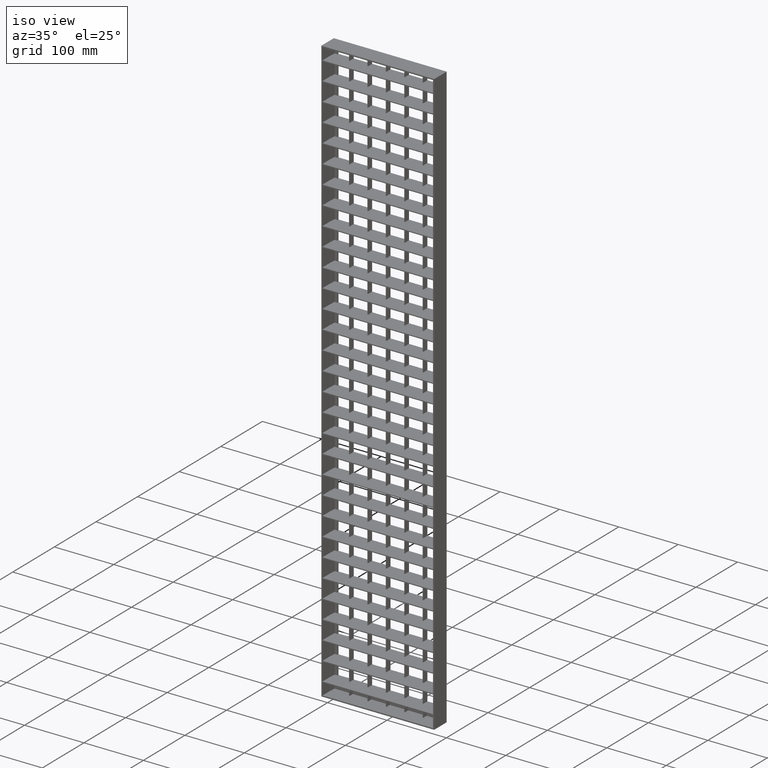
[diagram: clean part render]
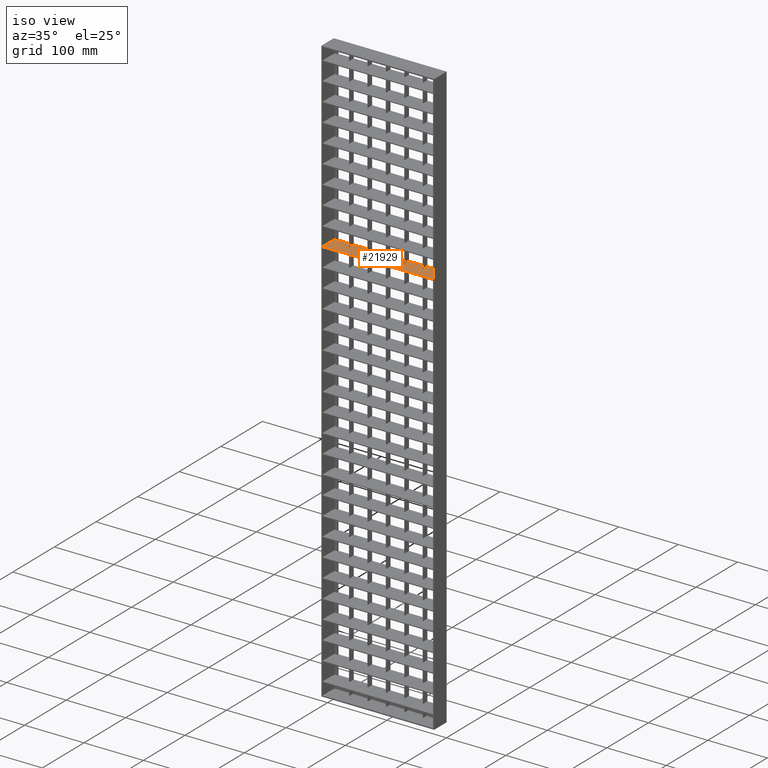
[diagram: same view with one face highlighted and labeled with its STEP entity id]
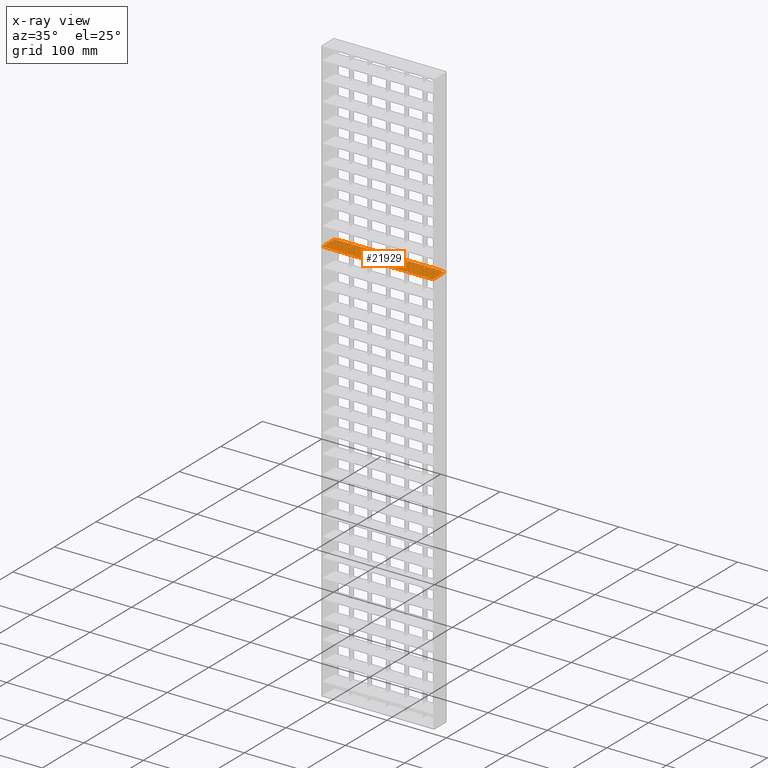
[diagram: x-ray of the same camera — body ghosted, the highlighted face saturated]
A machine part, iso view. The second image highlights one B-rep face of the part: STEP entity #21929.
The next image is the same camera in x-ray: the body ghosted, the highlighted face saturated — about 0% of this face is hidden behind the body in this view.
In plain terms, the highlighted planar face has unit normal (0, 0, 1).
Its self-contained STEP definition (entity closure, byte-faithful):
#222 = VERTEX_POINT ( 'NONE', #22766 ) ;
#343 = CARTESIAN_POINT ( 'NONE',  ( 182.0000000000000300, 13.00000000000000400, -305.2500000000000000 ) ) ;
#533 = CARTESIAN_POINT ( 'NONE',  ( 7.999999999999996400, 13.00000000000000400, -305.2500000000000000 ) ) ;
#712 = VECTOR ( 'NONE', #26463, 1000.000000000000000 ) ;
#835 = EDGE_CURVE ( 'NONE', #22558, #17253, #1848, .T. ) ;
#977 = DIRECTION ( 'NONE',  ( 0.0000000000000000000, -1.000000000000000000, 0.0000000000000000000 ) ) ;
#994 = VERTEX_POINT ( 'NONE', #343 ) ;
#1067 = ORIENTED_EDGE ( 'NONE', *, *, #2505, .T. ) ;
#1075 = AXIS2_PLACEMENT_3D ( 'NONE', #15352, #15467, #18135 ) ;
#1342 = LINE ( 'NONE', #6078, #26720 ) ;
#1373 = VERTEX_POINT ( 'NONE', #33401 ) ;
#1669 = CARTESIAN_POINT ( 'NONE',  ( 95.49999999999997200, 5.000000000000004400, -305.2500000000000000 ) ) ;
#1687 = VERTEX_POINT ( 'NONE', #533 ) ;
#1722 = LINE ( 'NONE', #17088, #21771 ) ;
#1848 = LINE ( 'NONE', #19509, #18624 ) ;
#1990 = DIRECTION ( 'NONE',  ( 0.0000000000000000000, -1.000000000000000000, 0.0000000000000000000 ) ) ;
#2008 = EDGE_CURVE ( 'NONE', #20102, #2392, #4578, .T. ) ;
#2012 = DIRECTION ( 'NONE',  ( 1.000000000000000000, 0.0000000000000000000, -0.0000000000000000000 ) ) ;
#2061 = VERTEX_POINT ( 'NONE', #4123 ) ;
#2066 = EDGE_CURVE ( 'NONE', #2061, #6449, #1722, .T. ) ;
#2151 = EDGE_CURVE ( 'NONE', #32925, #27427, #16447, .T. ) ;
#2297 = DIRECTION ( 'NONE',  ( -1.000000000000000000, -3.061616997868382600E-016, 0.0000000000000000000 ) ) ;
#2322 = CARTESIAN_POINT ( 'NONE',  ( 218.0374765917512100, 5.000000000000000900, -305.2500000000000000 ) ) ;
#2340 = LINE ( 'NONE', #12620, #8046 ) ;
#2346 = PLANE ( 'NONE',  #1075 ) ;
#2353 = LINE ( 'NONE', #31826, #712 ) ;
#2386 = VERTEX_POINT ( 'NONE', #10267 ) ;
#2392 = VERTEX_POINT ( 'NONE', #5244 ) ;
#2505 = EDGE_CURVE ( 'NONE', #24417, #2386, #33207, .T. ) ;
#2710 = VECTOR ( 'NONE', #7588, 1000.000000000000000 ) ;
#3505 = CARTESIAN_POINT ( 'NONE',  ( 218.0374765917511900, 15.00000000000005900, -305.2500000000000000 ) ) ;
#3516 = CARTESIAN_POINT ( 'NONE',  ( 7.999999999999994700, 15.00000000000000400, -305.2500000000000000 ) ) ;
#3893 = EDGE_CURVE ( 'NONE', #8502, #30115, #26185, .T. ) ;
#4123 = CARTESIAN_POINT ( 'NONE',  ( 125.5000000000000600, 15.00000000000003000, -305.2500000000000000 ) ) ;
#4355 = LINE ( 'NONE', #28188, #31405 ) ;
#4428 = DIRECTION ( 'NONE',  ( -1.000000000000000000, 0.0000000000000000000, 0.0000000000000000000 ) ) ;
#4578 = LINE ( 'NONE', #21781, #31624 ) ;
#4915 = VERTEX_POINT ( 'NONE', #26345 ) ;
#5244 = CARTESIAN_POINT ( 'NONE',  ( 187.5000000000000600, 13.00000000000000400, -305.2500000000000000 ) ) ;
#5540 = LINE ( 'NONE', #10970, #21525 ) ;
#5659 = CARTESIAN_POINT ( 'NONE',  ( 32.49999999999997200, 5.000000000000000900, -305.2500000000000000 ) ) ;
#6078 = CARTESIAN_POINT ( 'NONE',  ( 218.0374765917511900, 15.00000000000005900, -305.2500000000000000 ) ) ;
#6146 = LINE ( 'NONE', #9803, #22959 ) ;
#6195 = CARTESIAN_POINT ( 'NONE',  ( 188.0000000000000300, 5.000000000000004400, -305.2499999999998900 ) ) ;
#6201 = EDGE_CURVE ( 'NONE', #1373, #8253, #20195, .T. ) ;
#6205 = CARTESIAN_POINT ( 'NONE',  ( 218.0374765917511900, 15.00000000000005900, -305.2500000000000000 ) ) ;
#6225 = ORIENTED_EDGE ( 'NONE', *, *, #26392, .F. ) ;
#6449 = VERTEX_POINT ( 'NONE', #23157 ) ;
#6507 = LINE ( 'NONE', #19951, #32336 ) ;
#7025 = CARTESIAN_POINT ( 'NONE',  ( 95.49999999999997200, -14.99999999999994000, -305.2500000000000000 ) ) ;
#7162 = CARTESIAN_POINT ( 'NONE',  ( 125.5000000000000600, 5.000000000000002700, -305.2500000000002300 ) ) ;
#7181 = EDGE_CURVE ( 'NONE', #2386, #222, #22158, .T. ) ;
#7588 = DIRECTION ( 'NONE',  ( -1.000000000000000000, 0.0000000000000000000, 0.0000000000000000000 ) ) ;
#7665 = DIRECTION ( 'NONE',  ( -1.000000000000000000, 0.0000000000000000000, 0.0000000000000000000 ) ) ;
#7964 = ORIENTED_EDGE ( 'NONE', *, *, #14711, .T. ) ;
#8046 = VECTOR ( 'NONE', #977, 1000.000000000000000 ) ;
#8115 = CARTESIAN_POINT ( 'NONE',  ( 32.49999999999997200, 15.00000000000000200, -305.2500000000002300 ) ) ;
#8181 = VECTOR ( 'NONE', #4428, 1000.000000000000000 ) ;
#8232 = ORIENTED_EDGE ( 'NONE', *, *, #2008, .T. ) ;
#8246 = VECTOR ( 'NONE', #27511, 1000.000000000000000 ) ;
#8253 = VERTEX_POINT ( 'NONE', #24207 ) ;
#8257 = LINE ( 'NONE', #10635, #11925 ) ;
#8502 = VERTEX_POINT ( 'NONE', #25965 ) ;
#8549 = CARTESIAN_POINT ( 'NONE',  ( 2.000000000000004900, -15.00000000000000000, -305.2500000000000000 ) ) ;
#8608 = EDGE_CURVE ( 'NONE', #994, #4915, #13840, .T. ) ;
#9044 = CARTESIAN_POINT ( 'NONE',  ( 2.499999999999974200, -14.99999999999994000, -305.2500000000000000 ) ) ;
#9064 = CARTESIAN_POINT ( 'NONE',  ( 63.49999999999997200, 5.000000000000000900, -305.2500000000000000 ) ) ;
#9329 = LINE ( 'NONE', #12804, #14623 ) ;
#9426 = ORIENTED_EDGE ( 'NONE', *, *, #31780, .T. ) ;
#9803 = CARTESIAN_POINT ( 'NONE',  ( 218.0374765917511900, 15.00000000000005900, -305.2500000000000000 ) ) ;
#9890 = ORIENTED_EDGE ( 'NONE', *, *, #14443, .F. ) ;
#10057 = CARTESIAN_POINT ( 'NONE',  ( 32.49999999999997200, -14.99999999999994000, -305.2500000000000000 ) ) ;
#10267 = CARTESIAN_POINT ( 'NONE',  ( 157.5000000000000300, 5.000000000000002700, -305.2500000000002300 ) ) ;
#10531 = CARTESIAN_POINT ( 'NONE',  ( 2.499999999999974200, 13.00000000000000400, -305.2500000000000000 ) ) ;
#10635 = CARTESIAN_POINT ( 'NONE',  ( 7.999999999999996400, 13.00000000000000400, -305.2500000000000000 ) ) ;
#10681 = EDGE_CURVE ( 'NONE', #26962, #2061, #16543, .T. ) ;
#10935 = VECTOR ( 'NONE', #25501, 1000.000000000000000 ) ;
#10970 = CARTESIAN_POINT ( 'NONE',  ( 126.5000000000000600, -14.99999999999994000, -305.2500000000000000 ) ) ;
#11416 = EDGE_CURVE ( 'NONE', #30756, #32925, #20187, .T. ) ;
#11493 = DIRECTION ( 'NONE',  ( 8.673617379884037400E-016, 1.000000000000000000, -0.0000000000000000000 ) ) ;
#11586 = VERTEX_POINT ( 'NONE', #15545 ) ;
#11815 = VERTEX_POINT ( 'NONE', #23943 ) ;
#11925 = VECTOR ( 'NONE', #21207, 1000.000000000000000 ) ;
#12008 = CARTESIAN_POINT ( 'NONE',  ( 94.49999999999997200, 15.00000000000000200, -305.2500000000002300 ) ) ;
#12045 = LINE ( 'NONE', #3505, #13281 ) ;
#12219 = DIRECTION ( 'NONE',  ( 1.000000000000000000, 0.0000000000000000000, -0.0000000000000000000 ) ) ;
#12557 = CARTESIAN_POINT ( 'NONE',  ( 218.0374765917512100, 5.000000000000000900, -305.2500000000000000 ) ) ;
#12620 = CARTESIAN_POINT ( 'NONE',  ( 94.49999999999997200, -14.99999999999994000, -305.2500000000000000 ) ) ;
#12656 = CARTESIAN_POINT ( 'NONE',  ( 94.49999999999997200, 5.000000000000000900, -305.2500000000000000 ) ) ;
#12804 = CARTESIAN_POINT ( 'NONE',  ( 218.0374765917512100, 5.000000000000000900, -305.2500000000000000 ) ) ;
#12816 = LINE ( 'NONE', #27866, #19420 ) ;
#12959 = VERTEX_POINT ( 'NONE', #8115 ) ;
#13193 = LINE ( 'NONE', #15451, #26340 ) ;
#13281 = VECTOR ( 'NONE', #32360, 1000.000000000000000 ) ;
#13471 = ORIENTED_EDGE ( 'NONE', *, *, #32208, .T. ) ;
#13776 = EDGE_CURVE ( 'NONE', #33152, #6449, #16285, .T. ) ;
#13791 = CARTESIAN_POINT ( 'NONE',  ( 187.5000000000000600, 5.000000000000002700, -305.2500000000002300 ) ) ;
#13811 = DIRECTION ( 'NONE',  ( -0.0000000000000000000, -1.000000000000000000, 0.0000000000000000000 ) ) ;
#13840 = LINE ( 'NONE', #24608, #30281 ) ;
#14400 = LINE ( 'NONE', #24548, #33680 ) ;
#14443 = EDGE_CURVE ( 'NONE', #25018, #11586, #4355, .T. ) ;
#14587 = VECTOR ( 'NONE', #28412, 1000.000000000000000 ) ;
#14614 = EDGE_CURVE ( 'NONE', #12959, #22712, #21586, .T. ) ;
#14623 = VECTOR ( 'NONE', #20322, 1000.000000000000000 ) ;
#14711 = EDGE_CURVE ( 'NONE', #222, #1373, #2353, .T. ) ;
#14739 = DIRECTION ( 'NONE',  ( -0.0000000000000000000, 1.000000000000000000, 0.0000000000000000000 ) ) ;
#14782 = CARTESIAN_POINT ( 'NONE',  ( 2.000000000000004900, 13.00000000000000400, -305.2500000000000000 ) ) ;
#14880 = FACE_OUTER_BOUND ( 'NONE', #15189, .T. ) ;
#15189 = EDGE_LOOP ( 'NONE', ( #9890, #13471, #8232, #31973, #21712, #19328, #1067, #31858, #7964, #28572, #19778, #9426, #21459, #26544, #23237, #6225, #20263, #30893, #26143, #28669, #23326, #27609, #23608, #22001, #23666, #19891, #15523, #23004, #19389, #17025, #20059, #16613 ) ) ;
#15352 = CARTESIAN_POINT ( 'NONE',  ( 218.0374765917512100, -14.99999999999994000, -305.2500000000000000 ) ) ;
#15451 = CARTESIAN_POINT ( 'NONE',  ( 94.99999999999994300, 13.00000000000000400, -305.2500000000000000 ) ) ;
#15467 = DIRECTION ( 'NONE',  ( 0.0000000000000000000, 0.0000000000000000000, 1.000000000000000000 ) ) ;
#15523 = ORIENTED_EDGE ( 'NONE', *, *, #23222, .T. ) ;
#15545 = CARTESIAN_POINT ( 'NONE',  ( 188.0000000000000300, -15.00000000000000700, -305.2500000000000000 ) ) ;
#15614 = CARTESIAN_POINT ( 'NONE',  ( 218.0374765917512100, 5.000000000000000900, -305.2500000000000000 ) ) ;
#15759 = VECTOR ( 'NONE', #13811, 1000.000000000000000 ) ;
#16285 = LINE ( 'NONE', #7025, #10935 ) ;
#16447 = LINE ( 'NONE', #9044, #22605 ) ;
#16543 = LINE ( 'NONE', #26220, #16981 ) ;
#16613 = ORIENTED_EDGE ( 'NONE', *, *, #31019, .F. ) ;
#16657 = CARTESIAN_POINT ( 'NONE',  ( 126.5000000000000600, 5.000000000000002700, -305.2500000000002300 ) ) ;
#16749 = EDGE_CURVE ( 'NONE', #30756, #11815, #19058, .T. ) ;
#16918 = EDGE_CURVE ( 'NONE', #12959, #31424, #19093, .T. ) ;
#16974 = DIRECTION ( 'NONE',  ( -1.000000000000000000, -3.061616997868382600E-016, 0.0000000000000000000 ) ) ;
#16981 = VECTOR ( 'NONE', #23709, 1000.000000000000000 ) ;
#17025 = ORIENTED_EDGE ( 'NONE', *, *, #11416, .F. ) ;
#17042 = DIRECTION ( 'NONE',  ( 0.0000000000000000000, -1.000000000000000000, 0.0000000000000000000 ) ) ;
#17088 = CARTESIAN_POINT ( 'NONE',  ( 218.0374765917511900, 15.00000000000005900, -305.2500000000000000 ) ) ;
#17253 = VERTEX_POINT ( 'NONE', #18291 ) ;
#17646 = DIRECTION ( 'NONE',  ( 1.000000000000000000, 0.0000000000000000000, -0.0000000000000000000 ) ) ;
#17791 = EDGE_CURVE ( 'NONE', #22712, #32622, #12816, .T. ) ;
#18134 = VECTOR ( 'NONE', #17646, 1000.000000000000000 ) ;
#18135 = DIRECTION ( 'NONE',  ( 1.000000000000000000, 0.0000000000000000000, -0.0000000000000000000 ) ) ;
#18291 = CARTESIAN_POINT ( 'NONE',  ( 64.49999999999997200, 15.00000000000001200, -305.2500000000000000 ) ) ;
#18566 = VERTEX_POINT ( 'NONE', #32244 ) ;
#18624 = VECTOR ( 'NONE', #27284, 1000.000000000000000 ) ;
#19003 = CARTESIAN_POINT ( 'NONE',  ( 33.49999999999997200, -14.99999999999994000, -305.2500000000000000 ) ) ;
#19032 = DIRECTION ( 'NONE',  ( 0.0000000000000000000, -1.000000000000000000, 0.0000000000000000000 ) ) ;
#19058 = LINE ( 'NONE', #8549, #15759 ) ;
#19063 = LINE ( 'NONE', #19003, #23985 ) ;
#19093 = LINE ( 'NONE', #32620, #25228 ) ;
#19328 = ORIENTED_EDGE ( 'NONE', *, *, #21249, .T. ) ;
#19389 = ORIENTED_EDGE ( 'NONE', *, *, #2151, .F. ) ;
#19420 = VECTOR ( 'NONE', #2012, 1000.000000000000000 ) ;
#19469 = DIRECTION ( 'NONE',  ( -1.000000000000000000, -3.061616997868382600E-016, 0.0000000000000000000 ) ) ;
#19509 = CARTESIAN_POINT ( 'NONE',  ( 64.49999999999997200, -14.99999999999994000, -305.2500000000000000 ) ) ;
#19641 = EDGE_CURVE ( 'NONE', #8502, #18566, #6146, .T. ) ;
#19778 = ORIENTED_EDGE ( 'NONE', *, *, #33911, .T. ) ;
#19787 = VERTEX_POINT ( 'NONE', #12656 ) ;
#19891 = ORIENTED_EDGE ( 'NONE', *, *, #16918, .T. ) ;
#19951 = CARTESIAN_POINT ( 'NONE',  ( 218.0374765917512100, -14.99999999999994000, -305.2500000000000000 ) ) ;
#20052 = VECTOR ( 'NONE', #19032, 1000.000000000000000 ) ;
#20059 = ORIENTED_EDGE ( 'NONE', *, *, #16749, .T. ) ;
#20102 = VERTEX_POINT ( 'NONE', #13791 ) ;
#20187 = LINE ( 'NONE', #12557, #18134 ) ;
#20195 = LINE ( 'NONE', #6205, #8246 ) ;
#20226 = DIRECTION ( 'NONE',  ( -1.000000000000000000, 0.0000000000000000000, 0.0000000000000000000 ) ) ;
#20263 = ORIENTED_EDGE ( 'NONE', *, *, #33452, .F. ) ;
#20322 = DIRECTION ( 'NONE',  ( -1.000000000000000000, 0.0000000000000000000, 0.0000000000000000000 ) ) ;
#21207 = DIRECTION ( 'NONE',  ( 8.673617379884036500E-016, -1.000000000000000000, 0.0000000000000000000 ) ) ;
#21249 = EDGE_CURVE ( 'NONE', #4915, #24417, #12045, .T. ) ;
#21459 = ORIENTED_EDGE ( 'NONE', *, *, #10681, .T. ) ;
#21525 = VECTOR ( 'NONE', #29554, 1000.000000000000000 ) ;
#21586 = LINE ( 'NONE', #10057, #14587 ) ;
#21712 = ORIENTED_EDGE ( 'NONE', *, *, #8608, .T. ) ;
#21771 = VECTOR ( 'NONE', #16974, 1000.000000000000000 ) ;
#21781 = CARTESIAN_POINT ( 'NONE',  ( 187.5000000000000600, -14.99999999999994000, -305.2500000000000000 ) ) ;
#21810 = VERTEX_POINT ( 'NONE', #16657 ) ;
#21929 = ADVANCED_FACE ( 'NONE', ( #14880 ), #2346, .T. ) ;
#22001 = ORIENTED_EDGE ( 'NONE', *, *, #17791, .F. ) ;
#22158 = LINE ( 'NONE', #27912, #8181 ) ;
#22558 = VERTEX_POINT ( 'NONE', #23260 ) ;
#22605 = VECTOR ( 'NONE', #14739, 1000.000000000000000 ) ;
#22712 = VERTEX_POINT ( 'NONE', #5659 ) ;
#22766 = CARTESIAN_POINT ( 'NONE',  ( 156.5000000000000300, 5.000000000000002700, -305.2500000000002300 ) ) ;
#22959 = VECTOR ( 'NONE', #33534, 1000.000000000000000 ) ;
#23004 = ORIENTED_EDGE ( 'NONE', *, *, #24600, .T. ) ;
#23157 = CARTESIAN_POINT ( 'NONE',  ( 95.49999999999997200, 15.00000000000002000, -305.2500000000000000 ) ) ;
#23222 = EDGE_CURVE ( 'NONE', #31424, #1687, #8257, .T. ) ;
#23237 = ORIENTED_EDGE ( 'NONE', *, *, #13776, .F. ) ;
#23260 = CARTESIAN_POINT ( 'NONE',  ( 64.49999999999997200, 5.000000000000004400, -305.2500000000000000 ) ) ;
#23326 = ORIENTED_EDGE ( 'NONE', *, *, #3893, .F. ) ;
#23376 = EDGE_CURVE ( 'NONE', #30115, #22558, #14400, .T. ) ;
#23481 = EDGE_CURVE ( 'NONE', #30089, #17253, #1342, .T. ) ;
#23608 = ORIENTED_EDGE ( 'NONE', *, *, #28227, .F. ) ;
#23666 = ORIENTED_EDGE ( 'NONE', *, *, #14614, .F. ) ;
#23709 = DIRECTION ( 'NONE',  ( -0.0000000000000000000, 1.000000000000000000, 0.0000000000000000000 ) ) ;
#23943 = CARTESIAN_POINT ( 'NONE',  ( 2.000000000000001800, -15.00000000000000700, -305.2500000000000000 ) ) ;
#23985 = VECTOR ( 'NONE', #32248, 1000.000000000000000 ) ;
#24207 = CARTESIAN_POINT ( 'NONE',  ( 126.5000000000000600, 15.00000000000000200, -305.2500000000002300 ) ) ;
#24417 = VERTEX_POINT ( 'NONE', #33841 ) ;
#24436 = DIRECTION ( 'NONE',  ( -1.000000000000000000, -3.061616997868382600E-016, 0.0000000000000000000 ) ) ;
#24548 = CARTESIAN_POINT ( 'NONE',  ( 218.0374765917512100, 5.000000000000000900, -305.2500000000000000 ) ) ;
#24560 = DIRECTION ( 'NONE',  ( -0.0000000000000000000, 1.000000000000000000, 0.0000000000000000000 ) ) ;
#24600 = EDGE_CURVE ( 'NONE', #1687, #27427, #33968, .T. ) ;
#24608 = CARTESIAN_POINT ( 'NONE',  ( 182.0000000000000300, 12.99999999999991300, -305.2500000000000000 ) ) ;
#24649 = CARTESIAN_POINT ( 'NONE',  ( 33.49999999999997200, 5.000000000000004400, -305.2500000000000000 ) ) ;
#25018 = VERTEX_POINT ( 'NONE', #6195 ) ;
#25228 = VECTOR ( 'NONE', #19469, 1000.000000000000000 ) ;
#25501 = DIRECTION ( 'NONE',  ( -0.0000000000000000000, 1.000000000000000000, 0.0000000000000000000 ) ) ;
#25686 = LINE ( 'NONE', #15614, #2710 ) ;
#25965 = CARTESIAN_POINT ( 'NONE',  ( 63.49999999999997200, 15.00000000000000200, -305.2500000000002300 ) ) ;
#26143 = ORIENTED_EDGE ( 'NONE', *, *, #835, .F. ) ;
#26185 = LINE ( 'NONE', #26916, #20052 ) ;
#26198 = VECTOR ( 'NONE', #20226, 1000.000000000000000 ) ;
#26220 = CARTESIAN_POINT ( 'NONE',  ( 125.5000000000000600, -14.99999999999994000, -305.2500000000000000 ) ) ;
#26340 = VECTOR ( 'NONE', #7665, 1000.000000000000000 ) ;
#26345 = CARTESIAN_POINT ( 'NONE',  ( 181.9999999999999700, 15.00000000000000400, -305.2500000000000000 ) ) ;
#26392 = EDGE_CURVE ( 'NONE', #19787, #33152, #29400, .T. ) ;
#26463 = DIRECTION ( 'NONE',  ( -0.0000000000000000000, 1.000000000000000000, 0.0000000000000000000 ) ) ;
#26544 = ORIENTED_EDGE ( 'NONE', *, *, #2066, .T. ) ;
#26720 = VECTOR ( 'NONE', #24436, 1000.000000000000000 ) ;
#26916 = CARTESIAN_POINT ( 'NONE',  ( 63.49999999999997200, -14.99999999999994000, -305.2500000000000000 ) ) ;
#26962 = VERTEX_POINT ( 'NONE', #7162 ) ;
#27124 = CARTESIAN_POINT ( 'NONE',  ( 157.5000000000000300, -14.99999999999994000, -305.2500000000000000 ) ) ;
#27284 = DIRECTION ( 'NONE',  ( -0.0000000000000000000, 1.000000000000000000, 0.0000000000000000000 ) ) ;
#27427 = VERTEX_POINT ( 'NONE', #10531 ) ;
#27511 = DIRECTION ( 'NONE',  ( -1.000000000000000000, -3.061616997868382600E-016, 0.0000000000000000000 ) ) ;
#27609 = ORIENTED_EDGE ( 'NONE', *, *, #19641, .T. ) ;
#27866 = CARTESIAN_POINT ( 'NONE',  ( 218.0374765917512100, 5.000000000000000900, -305.2500000000000000 ) ) ;
#27912 = CARTESIAN_POINT ( 'NONE',  ( 218.0374765917512100, 5.000000000000000900, -305.2500000000000000 ) ) ;
#28172 = VECTOR ( 'NONE', #12219, 1000.000000000000000 ) ;
#28188 = CARTESIAN_POINT ( 'NONE',  ( 188.0000000000000300, -14.99999999999994000, -305.2500000000000000 ) ) ;
#28227 = EDGE_CURVE ( 'NONE', #32622, #18566, #19063, .T. ) ;
#28412 = DIRECTION ( 'NONE',  ( 0.0000000000000000000, -1.000000000000000000, 0.0000000000000000000 ) ) ;
#28572 = ORIENTED_EDGE ( 'NONE', *, *, #6201, .T. ) ;
#28669 = ORIENTED_EDGE ( 'NONE', *, *, #23376, .F. ) ;
#29197 = EDGE_CURVE ( 'NONE', #2392, #994, #13193, .T. ) ;
#29400 = LINE ( 'NONE', #2322, #28172 ) ;
#29554 = DIRECTION ( 'NONE',  ( 0.0000000000000000000, -1.000000000000000000, 0.0000000000000000000 ) ) ;
#30089 = VERTEX_POINT ( 'NONE', #12008 ) ;
#30115 = VERTEX_POINT ( 'NONE', #9064 ) ;
#30281 = VECTOR ( 'NONE', #11493, 1000.000000000000000 ) ;
#30756 = VERTEX_POINT ( 'NONE', #32414 ) ;
#30893 = ORIENTED_EDGE ( 'NONE', *, *, #23481, .T. ) ;
#31019 = EDGE_CURVE ( 'NONE', #11586, #11815, #6507, .T. ) ;
#31405 = VECTOR ( 'NONE', #1990, 1000.000000000000000 ) ;
#31424 = VERTEX_POINT ( 'NONE', #3516 ) ;
#31624 = VECTOR ( 'NONE', #24560, 1000.000000000000000 ) ;
#31780 = EDGE_CURVE ( 'NONE', #21810, #26962, #25686, .T. ) ;
#31826 = CARTESIAN_POINT ( 'NONE',  ( 156.5000000000000300, -14.99999999999994000, -305.2500000000000000 ) ) ;
#31858 = ORIENTED_EDGE ( 'NONE', *, *, #7181, .T. ) ;
#31973 = ORIENTED_EDGE ( 'NONE', *, *, #29197, .T. ) ;
#32070 = DIRECTION ( 'NONE',  ( 1.000000000000000000, 0.0000000000000000000, -0.0000000000000000000 ) ) ;
#32112 = CARTESIAN_POINT ( 'NONE',  ( 2.499999999999974200, 5.000000000000004400, -305.2500000000000000 ) ) ;
#32208 = EDGE_CURVE ( 'NONE', #25018, #20102, #9329, .T. ) ;
#32244 = CARTESIAN_POINT ( 'NONE',  ( 33.49999999999997200, 15.00000000000000200, -305.2500000000000000 ) ) ;
#32248 = DIRECTION ( 'NONE',  ( -0.0000000000000000000, 1.000000000000000000, 0.0000000000000000000 ) ) ;
#32336 = VECTOR ( 'NONE', #2297, 1000.000000000000000 ) ;
#32360 = DIRECTION ( 'NONE',  ( -1.000000000000000000, -3.061616997868382600E-016, 0.0000000000000000000 ) ) ;
#32414 = CARTESIAN_POINT ( 'NONE',  ( 2.000000000000004900, 5.000000000000000900, -305.2500000000000000 ) ) ;
#32620 = CARTESIAN_POINT ( 'NONE',  ( 218.0374765917511900, 15.00000000000005900, -305.2500000000000000 ) ) ;
#32622 = VERTEX_POINT ( 'NONE', #24649 ) ;
#32925 = VERTEX_POINT ( 'NONE', #32112 ) ;
#33152 = VERTEX_POINT ( 'NONE', #1669 ) ;
#33207 = LINE ( 'NONE', #27124, #33621 ) ;
#33401 = CARTESIAN_POINT ( 'NONE',  ( 156.5000000000000300, 15.00000000000003900, -305.2500000000000000 ) ) ;
#33452 = EDGE_CURVE ( 'NONE', #30089, #19787, #2340, .T. ) ;
#33534 = DIRECTION ( 'NONE',  ( -1.000000000000000000, -3.061616997868382600E-016, 0.0000000000000000000 ) ) ;
#33621 = VECTOR ( 'NONE', #17042, 1000.000000000000000 ) ;
#33680 = VECTOR ( 'NONE', #32070, 1000.000000000000000 ) ;
#33841 = CARTESIAN_POINT ( 'NONE',  ( 157.5000000000000300, 15.00000000000000200, -305.2500000000002300 ) ) ;
#33911 = EDGE_CURVE ( 'NONE', #8253, #21810, #5540, .T. ) ;
#33968 = LINE ( 'NONE', #14782, #26198 ) ;